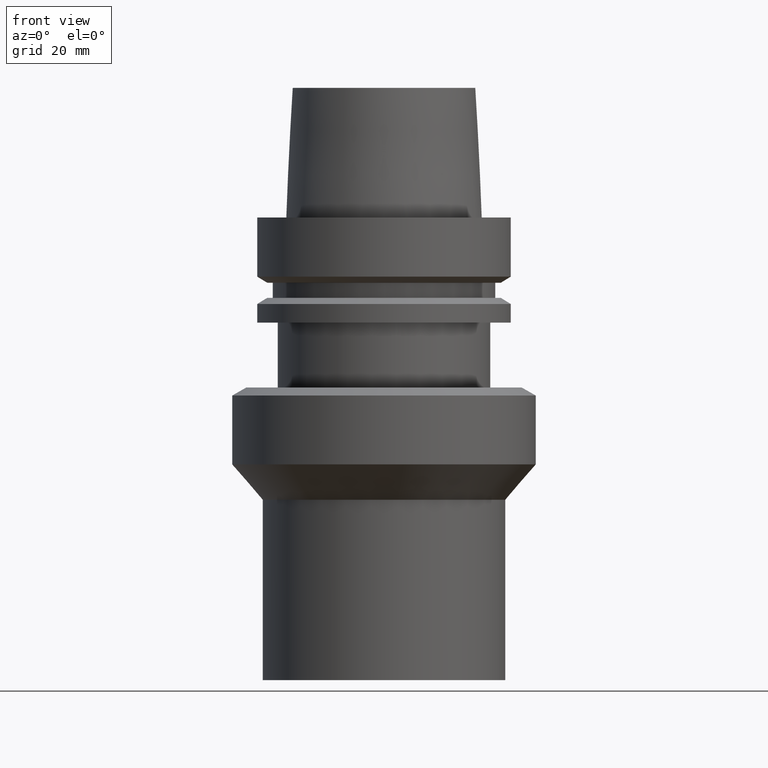
[diagram: clean part render]
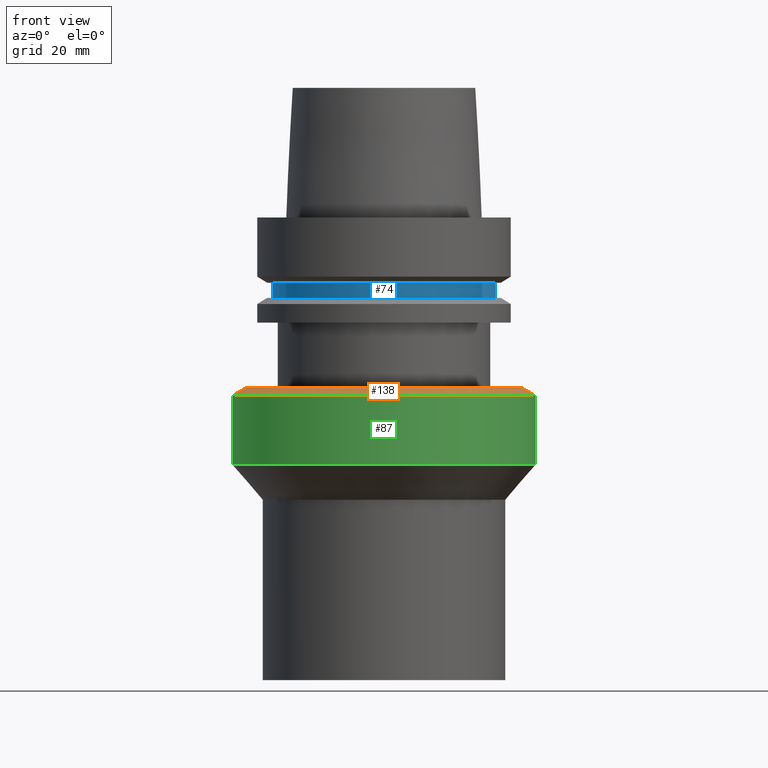
[diagram: same view with three faces highlighted in distinct colors, each labeled with its STEP entity id]
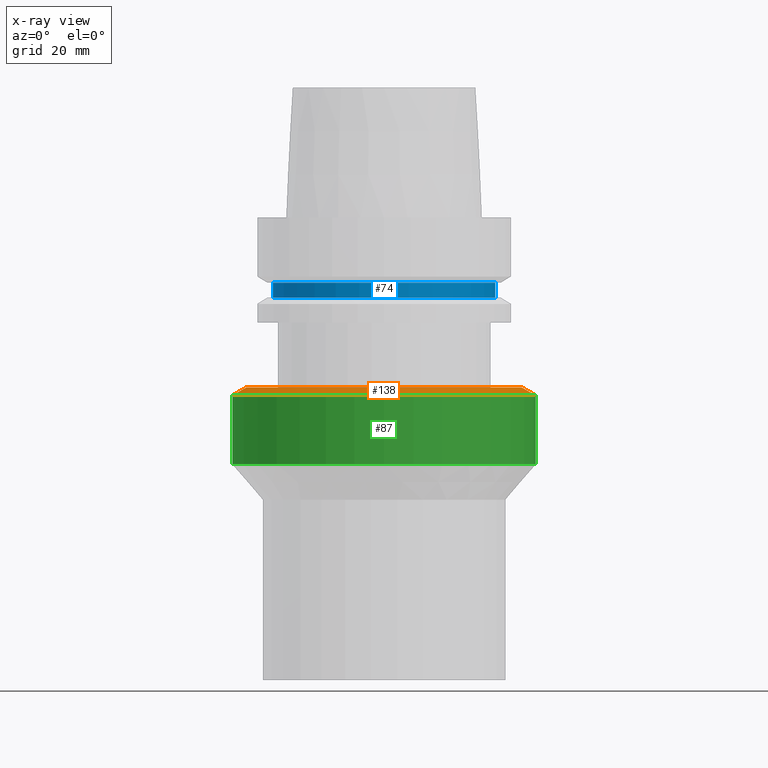
[diagram: x-ray of the same camera — body ghosted, the three highlighted faces saturated]
A machine part, front view with three faces highlighted in distinct colors.
The next image is the same camera in x-ray (body ghosted, the three faces saturated) — at least one of them is partly hidden behind the body in this view.
Their STEP definitions:

[orange] entity #138 — the highlighted conical surface has half-angle 60 deg.
#78=EDGE_CURVE('Unnamed[1]',#195,#195,#196,.T.);
#101=EDGE_CURVE('Unnamed[1]',#233,#233,#234,.T.);
#138=ADVANCED_FACE('Unnamed[1]',(#289,#290),#291,.T.);
#195=VERTEX_POINT('',#351);
#196=CIRCLE('',#352,34.0358983848624);
#233=VERTEX_POINT('',#397);
#234=CIRCLE('',#398,37.5);
#289=FACE_BOUND('',#467,.T.);
#290=FACE_BOUND('',#468,.T.);
#291=CONICAL_SURFACE('',#469,35.7679491924312,1.04719755119662);
#351=CARTESIAN_POINT('',(2.571758278207E-015,34.0358983848624,-41.9999999999601));
#352=AXIS2_PLACEMENT_3D('',#524,#525,#526);
#397=CARTESIAN_POINT('',(2.69422295812172E-015,37.5,-43.9999999999599));
#398=AXIS2_PLACEMENT_3D('',#569,#570,#571);
#467=EDGE_LOOP('',(#628));
#468=EDGE_LOOP('',(#629));
#469=AXIS2_PLACEMENT_3D('',#630,#631,#632);
#524=CARTESIAN_POINT('',(2.571758278207E-015,5.14351655641399E-015,-41.9999999999601));
#525=DIRECTION('',(-6.12323399573677E-017,-1.2246467991478E-016,1.0));
#526=DIRECTION('',(-1.23259516440761E-032,1.0,1.2246467991478E-016));
#569=CARTESIAN_POINT('',(2.69422295812172E-015,5.38844591624344E-015,-43.9999999999599));
#570=DIRECTION('',(-6.12323399573677E-017,-1.22464679914758E-016,1.0));
#571=DIRECTION('',(-1.23259516440783E-032,1.0,1.22464679914758E-016));
#628=ORIENTED_EDGE('',*,*,#78,.F.);
#629=ORIENTED_EDGE('',*,*,#101,.T.);
#630=CARTESIAN_POINT('',(2.63299061816436E-015,5.26598123632872E-015,-42.99999999996));
#631=DIRECTION('',(6.12323399573676E-017,1.22464679914723E-016,-1.0));
#632=DIRECTION('',(-1.23259516440798E-032,1.0,1.22464679914723E-016));

[blue] entity #74 — the highlighted cylindrical surface (bore or boss wall) has radius 27.5 mm, axis along (-0, -0, 1).
#60=EDGE_CURVE('Unnamed[1]',#167,#167,#168,.T.);
#74=ADVANCED_FACE('Unnamed[1]',(#188,#189),#190,.T.);
#149=EDGE_CURVE('Unnamed[1]',#306,#306,#307,.T.);
#167=VERTEX_POINT('',#316);
#168=CIRCLE('',#317,27.4999999999989);
#188=FACE_BOUND('',#342,.T.);
#189=FACE_BOUND('',#343,.T.);
#190=CYLINDRICAL_SURFACE('',#344,27.4999999999994);
#306=VERTEX_POINT('',#489);
#307=CIRCLE('',#490,27.5);
#316=CARTESIAN_POINT('',(1.21699275665276E-015,27.4999999999989,-19.8750000000013));
#317=AXIS2_PLACEMENT_3D('',#492,#493,#494);
#342=EDGE_LOOP('',(#516));
#343=EDGE_LOOP('',(#517));
#344=AXIS2_PLACEMENT_3D('',#518,#519,#520);
#489=CARTESIAN_POINT('',(9.87371481812537E-016,27.5,-16.1249999999997));
#490=AXIS2_PLACEMENT_3D('',#647,#648,#649);
#492=CARTESIAN_POINT('',(1.21699275665276E-015,2.43398551330552E-015,-19.8750000000013));
#493=DIRECTION('',(-6.12323399573677E-017,-1.22464679914747E-016,1.0));
#494=DIRECTION('',(-1.23259516440788E-032,1.0,1.22464679914747E-016));
#516=ORIENTED_EDGE('',*,*,#149,.F.);
#517=ORIENTED_EDGE('',*,*,#60,.T.);
#518=CARTESIAN_POINT('',(1.10218211923265E-015,2.2043642384653E-015,-18.0000000000005));
#519=DIRECTION('',(-6.12323399573677E-017,-1.22464679914745E-016,1.0));
#520=DIRECTION('',(-1.23259516440786E-032,1.0,1.22464679914745E-016));
#647=CARTESIAN_POINT('',(9.87371481812538E-016,1.97474296362508E-015,-16.1249999999997));
#648=DIRECTION('',(-6.12323399573677E-017,-1.22464679914742E-016,1.0));
#649=DIRECTION('',(-1.23259516440783E-032,1.0,1.22464679914742E-016));

[green] entity #87 — the highlighted cylindrical surface (bore or boss wall) has radius 37.5 mm, axis along (-0, -0, 1).
#87=ADVANCED_FACE('Unnamed[1]',(#209,#210),#211,.T.);
#101=EDGE_CURVE('Unnamed[1]',#233,#233,#234,.T.);
#125=EDGE_CURVE('Unnamed[1]',#271,#271,#272,.T.);
#209=FACE_BOUND('',#368,.T.);
#210=FACE_BOUND('',#369,.T.);
#211=CYLINDRICAL_SURFACE('',#370,37.5000000000001);
#233=VERTEX_POINT('',#397);
#234=CIRCLE('',#398,37.5);
#271=VERTEX_POINT('',#445);
#272=CIRCLE('',#446,37.5000000000001);
#368=EDGE_LOOP('',(#540));
#369=EDGE_LOOP('',(#541));
#370=AXIS2_PLACEMENT_3D('',#542,#543,#544);
#397=CARTESIAN_POINT('',(2.69422295812172E-015,37.5,-43.9999999999599));
#398=AXIS2_PLACEMENT_3D('',#569,#570,#571);
#445=CARTESIAN_POINT('',(3.73517273739954E-015,37.5000000000001,-61.0000000000018));
#446=AXIS2_PLACEMENT_3D('',#611,#612,#613);
#540=ORIENTED_EDGE('',*,*,#101,.F.);
#541=ORIENTED_EDGE('',*,*,#125,.T.);
#542=CARTESIAN_POINT('',(3.21469784776063E-015,6.42939569552126E-015,-52.4999999999808));
#543=DIRECTION('',(-6.12323399573677E-017,-1.22464679914758E-016,1.0));
#544=DIRECTION('',(-1.23259516440783E-032,1.0,1.22464679914758E-016));
#569=CARTESIAN_POINT('',(2.69422295812172E-015,5.38844591624344E-015,-43.9999999999599));
#570=DIRECTION('',(-6.12323399573677E-017,-1.22464679914758E-016,1.0));
#571=DIRECTION('',(-1.23259516440783E-032,1.0,1.22464679914758E-016));
#611=CARTESIAN_POINT('',(3.73517273739954E-015,7.47034547479907E-015,-61.0000000000018));
#612=DIRECTION('',(-6.12323399573677E-017,-1.22464679914757E-016,1.0));
#613=DIRECTION('',(-1.23259516440783E-032,1.0,1.22464679914757E-016));